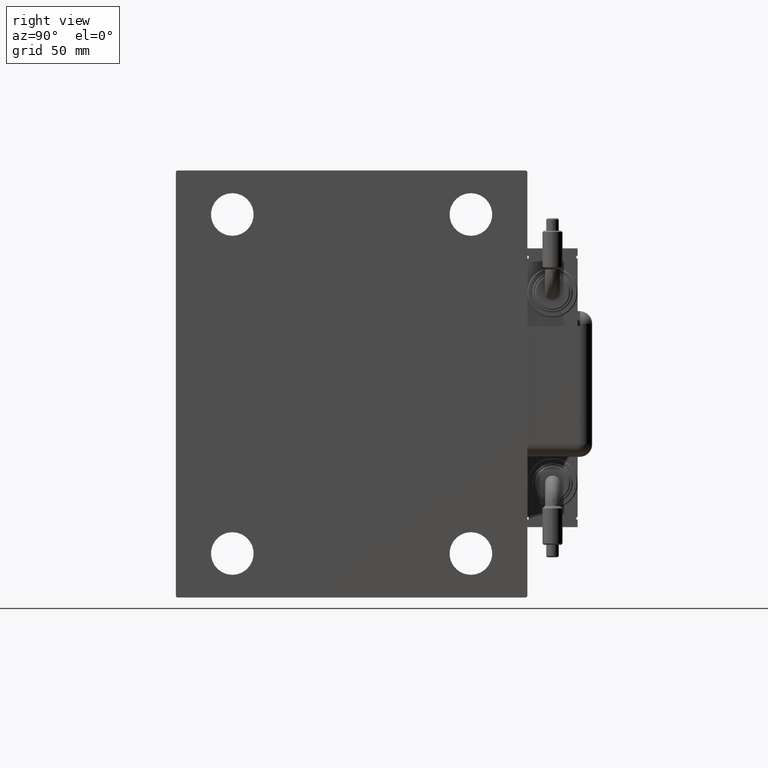
[diagram: clean part render]
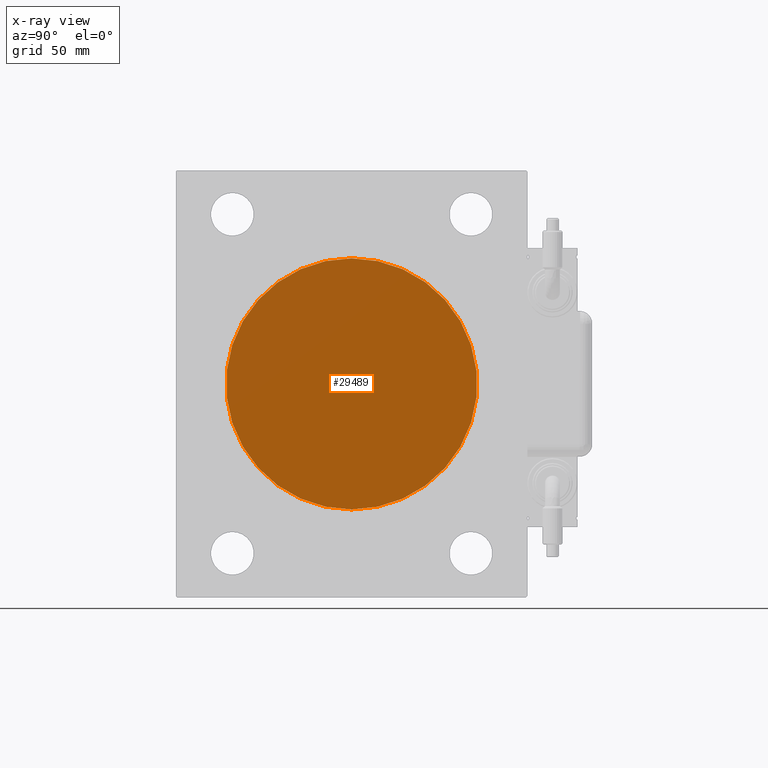
[diagram: x-ray — body ghosted, one internal face saturated and labeled with its STEP entity id]
A machine part, right view, then the same camera in x-ray: the body is ghosted and one INTERNAL B-rep face — a face not visible from any outside direction — is saturated and labeled: STEP entity #29489.
In plain terms, the highlighted planar face has unit normal (-1, 0, 0).
Its self-contained STEP definition (entity closure, byte-faithful):
#4791 = CARTESIAN_POINT ( 'NONE',  ( 51.00000000000000000, 0.000000000000000000, 0.000000000000000000 ) ) ;
#6479 = AXIS2_PLACEMENT_3D ( 'NONE', #35748, #49985, #26473 ) ;
#11383 = CIRCLE ( 'NONE', #34129, 50.00000000000000000 ) ;
#13780 = DIRECTION ( 'NONE',  ( 0.000000000000000000, 0.000000000000000000, 1.000000000000000000 ) ) ;
#15512 = CARTESIAN_POINT ( 'NONE',  ( 51.00000000000000000, 0.000000000000000000, 50.00000000000000000 ) ) ;
#16883 = FACE_OUTER_BOUND ( 'NONE', #31899, .T. ) ;
#17102 = CIRCLE ( 'NONE', #53674, 50.00000000000000000 ) ;
#19401 = ORIENTED_EDGE ( 'NONE', *, *, #49965, .T. ) ;
#19786 = CARTESIAN_POINT ( 'NONE',  ( 51.00000000000000000, 6.123233995736766085E-15, -50.00000000000000000 ) ) ;
#22773 = DIRECTION ( 'NONE',  ( -1.000000000000000000, 0.000000000000000000, 0.000000000000000000 ) ) ;
#26473 = DIRECTION ( 'NONE',  ( 0.000000000000000000, 0.000000000000000000, 1.000000000000000000 ) ) ;
#28482 = CARTESIAN_POINT ( 'NONE',  ( 51.00000000000000000, 0.000000000000000000, 0.000000000000000000 ) ) ;
#28714 = VERTEX_POINT ( 'NONE', #19786 ) ;
#29489 = ADVANCED_FACE ( 'NONE', ( #16883 ), #59901, .T. ) ;
#31899 = EDGE_LOOP ( 'NONE', ( #60778, #19401 ) ) ;
#34129 = AXIS2_PLACEMENT_3D ( 'NONE', #28482, #38067, #57574 ) ;
#35748 = CARTESIAN_POINT ( 'NONE',  ( 51.00000000000000000, 0.000000000000000000, 0.000000000000000000 ) ) ;
#37119 = VERTEX_POINT ( 'NONE', #15512 ) ;
#38067 = DIRECTION ( 'NONE',  ( -1.000000000000000000, 0.000000000000000000, 0.000000000000000000 ) ) ;
#49965 = EDGE_CURVE ( 'NONE', #28714, #37119, #17102, .T. ) ;
#49985 = DIRECTION ( 'NONE',  ( -1.000000000000000000, 0.000000000000000000, 0.000000000000000000 ) ) ;
#53674 = AXIS2_PLACEMENT_3D ( 'NONE', #4791, #22773, #13780 ) ;
#57574 = DIRECTION ( 'NONE',  ( 0.000000000000000000, 0.000000000000000000, 1.000000000000000000 ) ) ;
#59306 = EDGE_CURVE ( 'NONE', #37119, #28714, #11383, .T. ) ;
#59901 = PLANE ( 'NONE',  #6479 ) ;
#60778 = ORIENTED_EDGE ( 'NONE', *, *, #59306, .T. ) ;